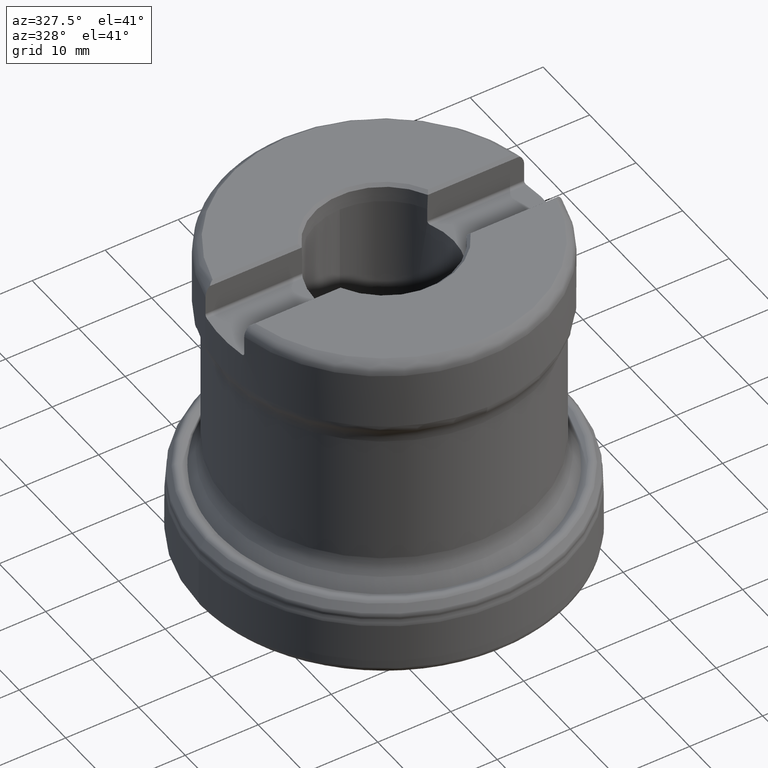
[diagram: clean part render]
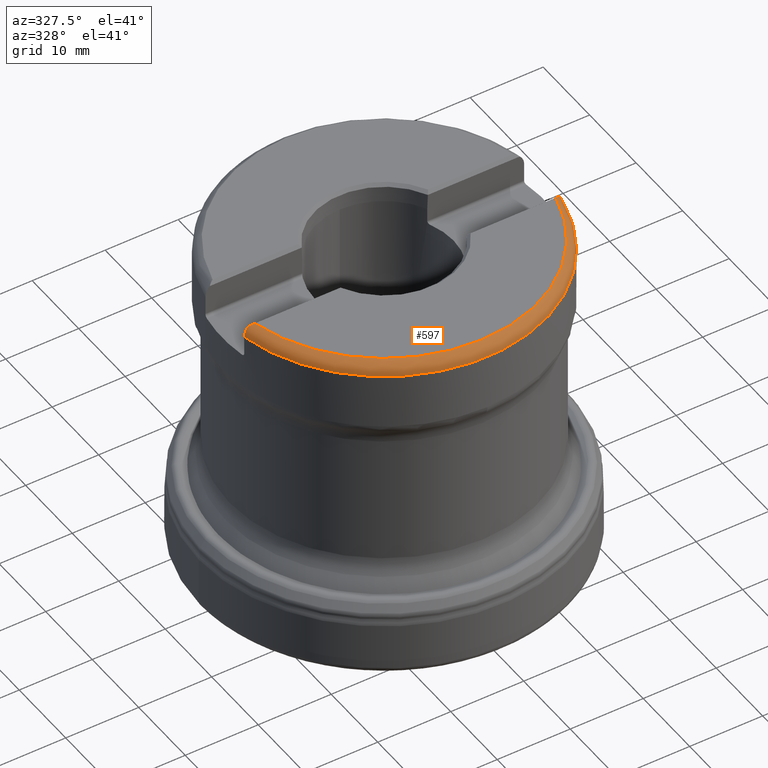
[diagram: same view with one face highlighted and labeled with its STEP entity id]
A machine part, auxiliary view. The second image highlights one B-rep face of the part: STEP entity #597.
In plain terms, the highlighted toroidal blend (fillet) surface has major radius 20.225 mm and minor (blend) radius 2 mm.
Its self-contained STEP definition (entity closure, byte-faithful):
#597=ADVANCED_FACE('',(#791),#764,.T.);
#764=TOROIDAL_SURFACE('',#2816,20.225,2.);
#791=FACE_OUTER_BOUND('',#895,.T.);
#895=EDGE_LOOP('',(#1270,#1271,#1272,#1273,#1274,#1275));
#1138=CIRCLE('',#2814,21.0967797887081);
#1139=CIRCLE('',#2815,22.225);
#1270=ORIENTED_EDGE('',*,*,#2254,.T.);
#1271=ORIENTED_EDGE('',*,*,#2255,.T.);
#1272=ORIENTED_EDGE('',*,*,#2256,.T.);
#1273=ORIENTED_EDGE('',*,*,#2257,.T.);
#1274=ORIENTED_EDGE('',*,*,#2258,.F.);
#1275=ORIENTED_EDGE('',*,*,#2259,.T.);
#1998=VERTEX_POINT('',#4096);
#1999=VERTEX_POINT('',#4097);
#2000=VERTEX_POINT('',#4099);
#2001=VERTEX_POINT('',#4107);
#2002=VERTEX_POINT('',#4118);
#2003=VERTEX_POINT('',#4120);
#2254=EDGE_CURVE('',#1998,#1999,#2624,.T.);
#2255=EDGE_CURVE('',#1999,#2000,#1138,.T.);
#2256=EDGE_CURVE('',#2000,#2001,#2625,.T.);
#2257=EDGE_CURVE('',#2001,#2002,#2626,.T.);
#2258=EDGE_CURVE('',#2003,#2002,#1139,.T.);
#2259=EDGE_CURVE('',#2003,#1998,#2627,.T.);
#2624=B_SPLINE_CURVE_WITH_KNOTS('',3,(#4092,#4093,#4094,#4095),
 .UNSPECIFIED.,.F.,.F.,(4,4),(0.,1.),.UNSPECIFIED.);
#2625=B_SPLINE_CURVE_WITH_KNOTS('',3,(#4100,#4101,#4102,#4103,#4104,#4105,
#4106),.UNSPECIFIED.,.F.,.F.,(4,3,4),(0.,0.285729838398129,1.),
 .UNSPECIFIED.);
#2626=B_SPLINE_CURVE_WITH_KNOTS('',3,(#4108,#4109,#4110,#4111,#4112,#4113,
#4114,#4115,#4116,#4117),.UNSPECIFIED.,.F.,.F.,(4,3,3,4),(0.,0.357475147391698,
0.631470029209992,1.),.UNSPECIFIED.);
#2627=B_SPLINE_CURVE_WITH_KNOTS('',3,(#4121,#4122,#4123,#4124,#4125,#4126,
#4127,#4128,#4129,#4130,#4131,#4132,#4133),.UNSPECIFIED.,.F.,.F.,(4,3,3,
3,4),(0.,0.0235769034230243,0.450426327350998,0.877298767139563,1.),
 .UNSPECIFIED.);
#2814=AXIS2_PLACEMENT_3D('',#4098,#3110,#3111);
#2815=AXIS2_PLACEMENT_3D('',#4119,#3112,#3113);
#2816=AXIS2_PLACEMENT_3D('',#4134,#3114,#3115);
#3110=DIRECTION('',(0.,-1.17145536458252E-15,-1.));
#3111=DIRECTION('',(0.,-1.,1.31563091114431E-15));
#3112=DIRECTION('',(0.,-1.17145536458252E-15,-1.));
#3113=DIRECTION('',(0.,1.,-1.24884479710366E-15));
#3114=DIRECTION('',(0.,-1.17145536458252E-15,-1.));
#3115=DIRECTION('',(0.,1.,-1.24884479710366E-15));
#4092=CARTESIAN_POINT('',(21.2469799262622,-4.17499999999995,44.0500000000017));
#4093=CARTESIAN_POINT('',(21.0611927763269,-4.33041334434489,44.2054133443466));
#4094=CARTESIAN_POINT('',(20.8409687604643,-4.46965060172736,44.3446506017274));
#4095=CARTESIAN_POINT('',(20.5947442920341,-4.57499999998929,44.4499999999894));
#4096=CARTESIAN_POINT('',(21.2469799262622,-4.17499999999995,44.0500000000017));
#4097=CARTESIAN_POINT('',(20.5947442920341,-4.57499999998929,44.4499999999894));
#4098=CARTESIAN_POINT('',(0.,5.20711909556932E-14,44.45));
#4099=CARTESIAN_POINT('',(-20.5947442920218,-4.57499999999994,44.45));
#4100=CARTESIAN_POINT('',(-20.5947442920218,-4.57499999999994,44.45));
#4101=CARTESIAN_POINT('',(-20.6653494290831,-4.54479094421068,44.4197909442107));
#4102=CARTESIAN_POINT('',(-20.7337286457125,-4.5118463651318,44.3868463651319));
#4103=CARTESIAN_POINT('',(-20.7995701606215,-4.47666714969646,44.3516671496965));
#4104=CARTESIAN_POINT('',(-20.9639814511371,-4.38882196240018,44.2638219624002));
#4105=CARTESIAN_POINT('',(-21.11394900829,-4.28628207666812,44.1612820766683));
#4106=CARTESIAN_POINT('',(-21.2469799262605,-4.17499999999995,44.0500000000001));
#4107=CARTESIAN_POINT('',(-21.2469799262605,-4.17499999999995,44.0500000000001));
#4108=CARTESIAN_POINT('',(-21.2469799262605,-4.17499999999995,44.0500000000001));
#4109=CARTESIAN_POINT('',(-21.3772985676967,-4.17499999999995,43.9195431182447));
#4110=CARTESIAN_POINT('',(-21.4906113524925,-4.17499999999995,43.7696092681629));
#4111=CARTESIAN_POINT('',(-21.580233497771,-4.17499999999995,43.60845773271));
#4112=CARTESIAN_POINT('',(-21.6495163514553,-4.17499999999995,43.4838787213831));
#4113=CARTESIAN_POINT('',(-21.7056395857914,-4.17499999999995,43.3510304224226));
#4114=CARTESIAN_POINT('',(-21.7465470159613,-4.17499999999995,43.2144777731084));
#4115=CARTESIAN_POINT('',(-21.8011211838264,-4.17499999999995,43.0323043348078));
#4116=CARTESIAN_POINT('',(-21.8293380568445,-4.17499999999995,42.84017229404));
#4117=CARTESIAN_POINT('',(-21.8293380568445,-4.17499999999995,42.65));
#4118=CARTESIAN_POINT('',(-21.8293380568445,-4.17499999999995,42.65));
#4119=CARTESIAN_POINT('',(0.,4.99625712994447E-14,42.65));
#4120=CARTESIAN_POINT('',(21.8293380568445,-4.17499999999995,42.65));
#4121=CARTESIAN_POINT('',(21.8293380568445,-4.17499999999995,42.65));
#4122=CARTESIAN_POINT('',(21.8293380568445,-4.17499999999995,42.6623192441586));
#4123=CARTESIAN_POINT('',(21.8292221603621,-4.17499999999995,42.6746390333291));
#4124=CARTESIAN_POINT('',(21.8289904001373,-4.17499999999995,42.6869560972584));
#4125=CARTESIAN_POINT('',(21.8248475743311,-4.17499999999995,42.9071295560283));
#4126=CARTESIAN_POINT('',(21.7825465574143,-4.17499999999995,43.1296007116749));
#4127=CARTESIAN_POINT('',(21.7057954350224,-4.17499999999995,43.3360051209396));
#4128=CARTESIAN_POINT('',(21.6290249137104,-4.17499999999995,43.5424616991175));
#4129=CARTESIAN_POINT('',(21.5157438398601,-4.17499999999995,43.7384662184852));
#4130=CARTESIAN_POINT('',(21.3755877860335,-4.17499999999995,43.9083906493101));
#4131=CARTESIAN_POINT('',(21.3350145961014,-4.17499999999995,43.9575813622172));
#4132=CARTESIAN_POINT('',(21.2920443201936,-4.17499999999995,44.0048878023476));
#4133=CARTESIAN_POINT('',(21.2469799262622,-4.17499999999995,44.0500000000017));
#4134=CARTESIAN_POINT('',(0.,4.99625712994447E-14,42.65));